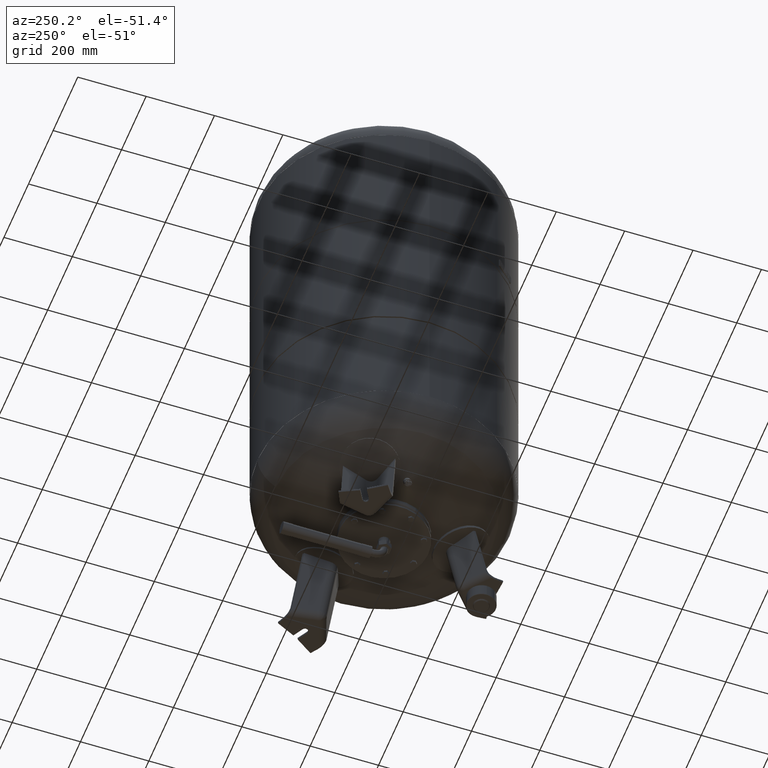
[diagram: clean part render]
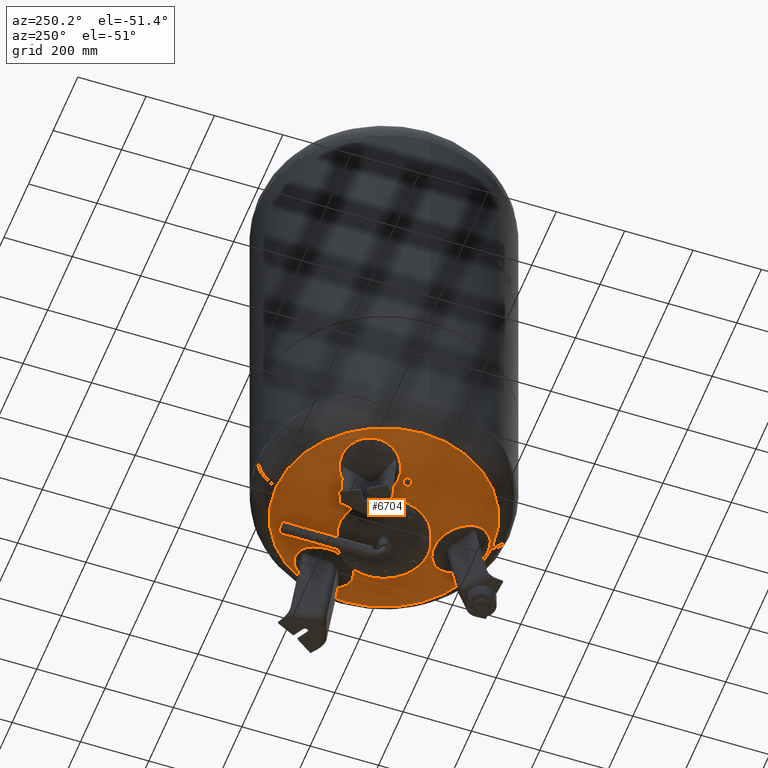
[diagram: same view with one face highlighted and labeled with its STEP entity id]
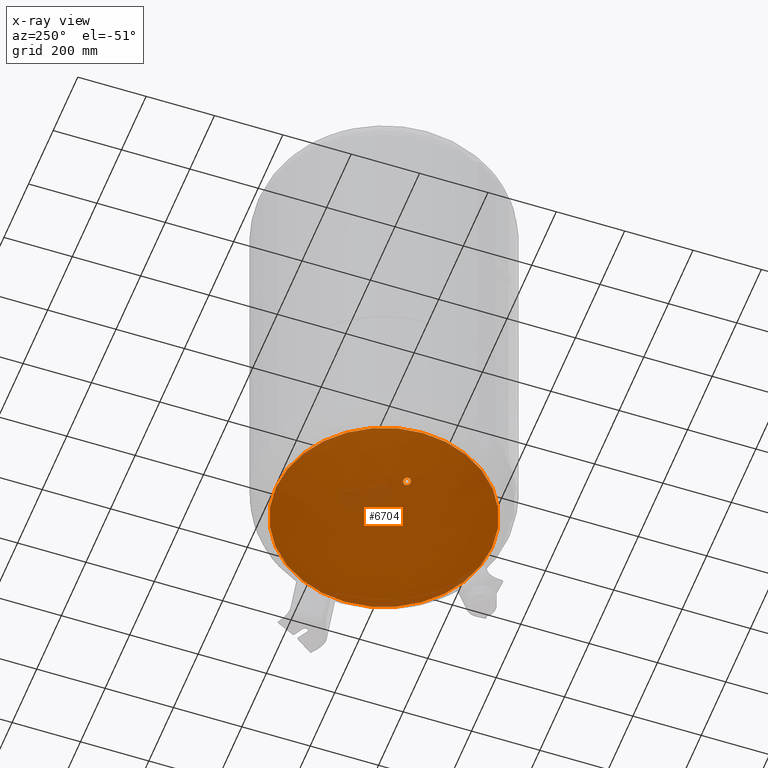
[diagram: x-ray of the same camera — body ghosted, the highlighted face saturated]
A machine part, auxiliary view. The second image highlights one B-rep face of the part: STEP entity #6704.
The next image is the same camera in x-ray: the body ghosted, the highlighted face saturated — about 3% of this face is hidden behind the body in this view.
In plain terms, the highlighted spherical surface has radius 594 mm.
Its self-contained STEP definition (entity closure, byte-faithful):
#6090=CARTESIAN_POINT('',(-186.475898480732810,10.649999999999997,210.130053305016530));
#6091=VERTEX_POINT('',#6090);
#6107=CARTESIAN_POINT('',(-186.475898480732720,-10.650000000000007,210.130053305016530));
#6108=VERTEX_POINT('',#6107);
#6115=CARTESIAN_POINT('',(-186.475898480732720,-10.650000000000007,210.130053305016530));
#6116=CARTESIAN_POINT('',(-187.124860883245160,-10.650000000000007,210.344669898431450));
#6117=CARTESIAN_POINT('',(-187.796419153283950,-10.585897257729055,210.566811580146290));
#6118=CARTESIAN_POINT('',(-189.133346046879210,-10.315197843523979,211.009157990052330));
#6119=CARTESIAN_POINT('',(-189.798725137413130,-10.108658305297702,211.229366045118810));
#6120=CARTESIAN_POINT('',(-191.076019149340080,-9.561247992594435,211.652185101280420));
#6121=CARTESIAN_POINT('',(-191.688913967560210,-9.219951288830538,211.855120108877880));
#6122=CARTESIAN_POINT('',(-192.823245490695570,-8.429330288861298,212.230780821028390));
#6123=CARTESIAN_POINT('',(-193.344645356914100,-7.979947097098358,212.403493806613260));
#6124=CARTESIAN_POINT('',(-194.257487015804490,-7.030422985901732,212.705916681357510));
#6125=CARTESIAN_POINT('',(-194.682073986333620,-6.499959822582402,212.846606772842930));
#6126=CARTESIAN_POINT('',(-195.431782062258290,-5.343773011801500,213.095059043302630));
#6127=CARTESIAN_POINT('',(-195.756940428860790,-4.718076059811918,213.202833012730140));
#6128=CARTESIAN_POINT('',(-196.279773371397030,-3.411750880367439,213.376139475025640));
#6129=CARTESIAN_POINT('',(-196.477873122917200,-2.730044237096569,213.441812530799580));
#6130=CARTESIAN_POINT('',(-196.737912556741290,-1.358119939518624,213.528021592298700));
#6131=CARTESIAN_POINT('',(-196.799795716716970,-0.667890388706037,213.548538760171940));
#6132=CARTESIAN_POINT('',(-196.799795716717030,0.667890388705907,213.548538760171940));
#6133=CARTESIAN_POINT('',(-196.737912556741290,1.358119939518490,213.528021592298700));
#6134=CARTESIAN_POINT('',(-196.477873122917260,2.730044237096433,213.441812530799610));
#6135=CARTESIAN_POINT('',(-196.279773371397030,3.411750880367301,213.376139475025750));
#6136=CARTESIAN_POINT('',(-195.756940428860790,4.718076059811795,213.202833012730200));
#6137=CARTESIAN_POINT('',(-195.431782062258380,5.343773011801374,213.095059043302630));
#6138=CARTESIAN_POINT('',(-194.682073986333710,6.499959822582289,212.846606772842900));
#6139=CARTESIAN_POINT('',(-194.257487015804540,7.030422985901635,212.705916681357510));
#6140=CARTESIAN_POINT('',(-193.344645356914100,7.979947097098268,212.403493806613260));
#6141=CARTESIAN_POINT('',(-192.823245490695570,8.429330288861236,212.230780821028500));
#6142=CARTESIAN_POINT('',(-191.688913967560240,9.219951288830469,211.855120108878000));
#6143=CARTESIAN_POINT('',(-191.076019149340110,9.561247992594385,211.652185101280510));
#6144=CARTESIAN_POINT('',(-189.798725137413190,10.108658305297656,211.229366045118920));
#6145=CARTESIAN_POINT('',(-189.133346046879300,10.315197843523951,211.009157990052300));
#6146=CARTESIAN_POINT('',(-187.796419153284030,10.585897257729030,210.566811580146290));
#6147=CARTESIAN_POINT('',(-187.124860883245220,10.649999999999993,210.344669898431500));
#6148=CARTESIAN_POINT('',(-186.475898480732780,10.649999999999997,210.130053305016590));
#6149=B_SPLINE_CURVE_WITH_KNOTS('',3,(#6115,#6116,#6117,#6118,#6119,#6120,#6121,#6122,#6123,#6124,#6125,#6126,#6127,#6128,#6129,#6130,#6131,#6132,#6133,#6134,#6135,#6136,#6137,#6138,#6139,#6140,#6141,#6142,#6143,#6144,#6145,#6146,#6147,#6148),.UNSPECIFIED.,.F.,.U.,(4,2,2,2,2,2,2,2,2,2,2,2,2,2,2,2,4),(32.436275591715777,34.486863882522528,36.537452173329278,38.588040464136029,40.638628754942779,42.642299921060683,44.645971087178594,46.649642253296506,48.653313419414417,50.656984585532335,52.660655751650253,54.664326917768172,56.667998083886090,58.718586374692833,60.769174665499570,62.819762956306306,64.870351247113049),.UNSPECIFIED.);
#6150=EDGE_CURVE('',#6108,#6091,#6149,.T.);
#6603=CARTESIAN_POINT('',(0.0,-315.931034482758610,270.985505725079410));
#6604=VERTEX_POINT('',#6603);
#6620=CARTESIAN_POINT('',(-3.868912E-014,315.931034482758610,270.985505725079630));
#6621=VERTEX_POINT('',#6620);
#6629=CARTESIAN_POINT('',(-315.931034482758610,-1.671377E-014,270.985505725079520));
#6630=VERTEX_POINT('',#6629);
#6631=CARTESIAN_POINT('',(0.0,-1.671377E-014,270.985505725079520));
#6632=DIRECTION('',(0.0,0.0,1.0));
#6633=DIRECTION('',(-1.0,0.0,0.0));
#6634=AXIS2_PLACEMENT_3D('',#6631,#6632,#6633);
#6635=CIRCLE('',#6634,315.931034482758610);
#6636=EDGE_CURVE('',#6621,#6630,#6635,.T.);
#6638=CARTESIAN_POINT('',(0.0,-1.671377E-014,270.985505725079520));
#6639=DIRECTION('',(0.0,0.0,1.0));
#6640=DIRECTION('',(-1.0,0.0,0.0));
#6641=AXIS2_PLACEMENT_3D('',#6638,#6639,#6640);
#6642=CIRCLE('',#6641,315.931034482758610);
#6643=EDGE_CURVE('',#6630,#6604,#6642,.T.);
#6648=CARTESIAN_POINT('',(0.0,-1.091160E-013,774.0));
#6649=DIRECTION('',(0.0,-1.0,0.0));
#6650=DIRECTION('',(1.0,0.0,0.0));
#6651=AXIS2_PLACEMENT_3D('',#6648,#6649,#6650);
#6652=SPHERICAL_SURFACE('',#6651,594.0);
#6653=ORIENTED_EDGE('',*,*,#6643,.F.);
#6654=ORIENTED_EDGE('',*,*,#6636,.F.);
#6655=CARTESIAN_POINT('',(0.0,-1.671377E-014,270.985505725079520));
#6656=DIRECTION('',(0.0,0.0,1.0));
#6657=DIRECTION('',(-1.0,0.0,0.0));
#6658=AXIS2_PLACEMENT_3D('',#6655,#6656,#6657);
#6659=CIRCLE('',#6658,315.931034482758610);
#6660=EDGE_CURVE('',#6604,#6621,#6659,.T.);
#6661=ORIENTED_EDGE('',*,*,#6660,.F.);
#6662=EDGE_LOOP('',(#6653,#6654,#6661));
#6663=FACE_OUTER_BOUND('',#6662,.T.);
#6664=CARTESIAN_POINT('',(-186.475898480732810,10.649999999999997,210.130053305016530));
#6665=CARTESIAN_POINT('',(-185.826857262622610,10.650000000000000,209.915410646709430));
#6666=CARTESIAN_POINT('',(-185.155189002635550,10.585881941269065,209.693337541784080));
#6667=CARTESIAN_POINT('',(-183.817972456978420,10.315140907270656,209.251325742436390));
#6668=CARTESIAN_POINT('',(-183.152413716095850,10.108575420795347,209.031383467034770));
#6669=CARTESIAN_POINT('',(-181.874702958794050,9.561115962779446,208.609245654441850));
#6670=CARTESIAN_POINT('',(-181.261571551697190,9.219796601847493,208.406726181735730));
#6671=CARTESIAN_POINT('',(-180.126739662913390,8.429135555707340,208.031961422356400));
#6672=CARTESIAN_POINT('',(-179.605076390444790,7.979734889042932,207.859727901417900));
#6673=CARTESIAN_POINT('',(-178.691777632374340,7.030223425909293,207.558237190891700));
#6674=CARTESIAN_POINT('',(-178.266967031903930,6.499795006664646,207.418027744112120));
#6675=CARTESIAN_POINT('',(-177.516820493067400,5.343673314597983,207.170472052846210));
#6676=CARTESIAN_POINT('',(-177.191447818701590,4.718006595743994,207.063113117552920));
#6677=CARTESIAN_POINT('',(-176.668249033123230,3.411728432436548,206.890493496221320));
#6678=CARTESIAN_POINT('',(-176.469997721336170,2.730038109064847,206.825092141960570));
#6679=CARTESIAN_POINT('',(-176.209754193452710,1.358129372843327,206.739242218086760));
#6680=CARTESIAN_POINT('',(-176.147818686771070,0.667899039003240,206.718812252783660));
#6681=CARTESIAN_POINT('',(-176.147818686771020,-0.667899039003132,206.718812252783660));
#6682=CARTESIAN_POINT('',(-176.209754193452740,-1.358129372843216,206.739242218086760));
#6683=CARTESIAN_POINT('',(-176.469997721336140,-2.730038109064747,206.825092141960570));
#6684=CARTESIAN_POINT('',(-176.668249033123170,-3.411728432436458,206.890493496221320));
#6685=CARTESIAN_POINT('',(-177.191447818701530,-4.718006595743912,207.063113117552890));
#6686=CARTESIAN_POINT('',(-177.516820493067370,-5.343673314597923,207.170472052846180));
#6687=CARTESIAN_POINT('',(-178.266967031903850,-6.499795006664585,207.418027744112120));
#6688=CARTESIAN_POINT('',(-178.691777632374230,-7.030223425909218,207.558237190891700));
#6689=CARTESIAN_POINT('',(-179.605076390444710,-7.979734889042868,207.859727901417900));
#6690=CARTESIAN_POINT('',(-180.126739662913250,-8.429135555707251,208.031961422356290));
#6691=CARTESIAN_POINT('',(-181.261571551697070,-9.219796601847428,208.406726181735620));
#6692=CARTESIAN_POINT('',(-181.874702958793990,-9.561115962779397,208.609245654441740));
#6693=CARTESIAN_POINT('',(-183.152413716095790,-10.108575420795315,209.031383467034660));
#6694=CARTESIAN_POINT('',(-183.817972456978310,-10.315140907270647,209.251325742436390));
#6695=CARTESIAN_POINT('',(-185.155189002635440,-10.585881941269067,209.693337541784080));
#6696=CARTESIAN_POINT('',(-185.826857262622550,-10.650000000000007,209.915410646709380));
#6697=CARTESIAN_POINT('',(-186.475898480732720,-10.650000000000007,210.130053305016530));
#6698=B_SPLINE_CURVE_WITH_KNOTS('',3,(#6664,#6665,#6666,#6667,#6668,#6669,#6670,#6671,#6672,#6673,#6674,#6675,#6676,#6677,#6678,#6679,#6680,#6681,#6682,#6683,#6684,#6685,#6686,#6687,#6688,#6689,#6690,#6691,#6692,#6693,#6694,#6695,#6696,#6697),.UNSPECIFIED.,.F.,.U.,(4,2,2,2,2,2,2,2,2,2,2,2,2,2,2,2,4),(0.0,2.050837331954914,4.101674663909828,6.152511995864741,8.203349327819655,10.207046444829214,12.210743561838770,14.214440678848327,16.218137795857885,18.221834912867443,20.225532029877002,22.229229146886560,24.232926263896118,26.283763595851035,28.334600927805948,30.385438259760861,32.436275591715777),.UNSPECIFIED.);
#6699=EDGE_CURVE('',#6091,#6108,#6698,.T.);
#6700=ORIENTED_EDGE('',*,*,#6699,.F.);
#6701=ORIENTED_EDGE('',*,*,#6150,.F.);
#6702=EDGE_LOOP('',(#6700,#6701));
#6703=FACE_BOUND('',#6702,.T.);
#6704=ADVANCED_FACE('',(#6663,#6703),#6652,.T.);